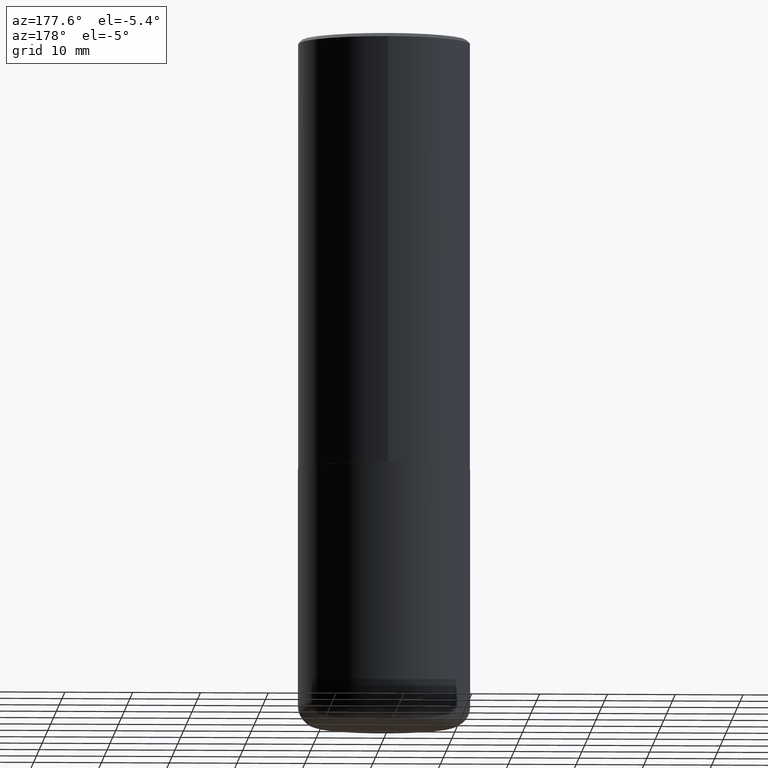
[diagram: clean part render]
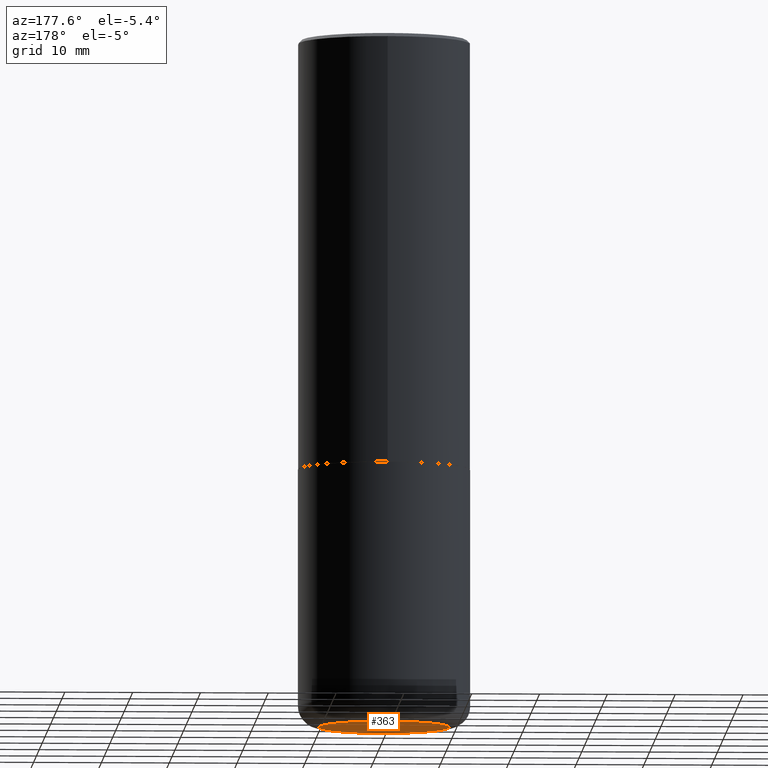
[diagram: same view with one face highlighted and labeled with its STEP entity id]
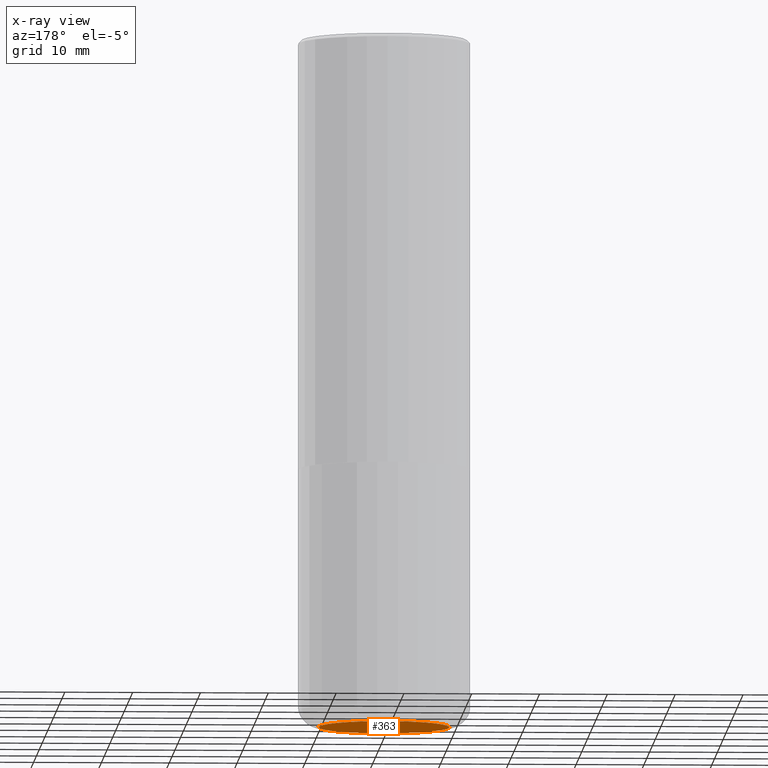
[diagram: x-ray of the same camera — body ghosted, the highlighted face saturated]
A machine part, auxiliary view. The second image highlights one B-rep face of the part: STEP entity #363.
The next image is the same camera in x-ray: the body ghosted, the highlighted face saturated — about 0% of this face is hidden behind the body in this view.
In plain terms, the highlighted planar face has unit normal (0, -0, -1).
Its self-contained STEP definition (entity closure, byte-faithful):
#15 = CARTESIAN_POINT ( 'NONE',  ( -0.3799999999999999489, -1.063004843769755357E-14, -4.000000000000000888 ) ) ;
#34 = EDGE_CURVE ( 'NONE', #104, #303, #343, .T. ) ;
#52 = DIRECTION ( 'NONE',  ( -1.000000000000000000, 6.982962677686265922E-15, -4.876176775795935793E-29 ) ) ;
#57 = DIRECTION ( 'NONE',  ( 2.438088387897960049E-29, -3.491481338843145188E-15, -1.000000000000000000 ) ) ;
#68 = AXIS2_PLACEMENT_3D ( 'NONE', #212, #275, #366 ) ;
#72 = ORIENTED_EDGE ( 'NONE', *, *, #34, .F. ) ;
#81 = FACE_OUTER_BOUND ( 'NONE', #228, .T. ) ;
#98 = EDGE_CURVE ( 'NONE', #303, #104, #176, .T. ) ;
#103 = ORIENTED_EDGE ( 'NONE', *, *, #98, .F. ) ;
#104 = VERTEX_POINT ( 'NONE', #15 ) ;
#176 = CIRCLE ( 'NONE', #68, 0.3799999999999999489 ) ;
#206 = AXIS2_PLACEMENT_3D ( 'NONE', #304, #57, #52 ) ;
#208 = DIRECTION ( 'NONE',  ( 1.000000000000000000, -6.982962677686267499E-15, 0.000000000000000000 ) ) ;
#209 = CARTESIAN_POINT ( 'NONE',  ( 0.3799999999999999489, -1.661945117289336400E-14, -4.000000000000000888 ) ) ;
#212 = CARTESIAN_POINT ( 'NONE',  ( 9.781875224740547508E-29, -1.396592535537258391E-14, -4.000000000000000888 ) ) ;
#228 = EDGE_LOOP ( 'NONE', ( #103, #72 ) ) ;
#238 = AXIS2_PLACEMENT_3D ( 'NONE', #305, #272, #208 ) ;
#247 = PLANE ( 'NONE',  #206 ) ;
#272 = DIRECTION ( 'NONE',  ( -2.445468806185136597E-29, 3.491481338843145583E-15, 1.000000000000000000 ) ) ;
#275 = DIRECTION ( 'NONE',  ( -2.445468806185136597E-29, 3.491481338843145583E-15, 1.000000000000000000 ) ) ;
#303 = VERTEX_POINT ( 'NONE', #209 ) ;
#304 = CARTESIAN_POINT ( 'NONE',  ( 5.765792576136407414E-29, -1.971718428940261207E-14, -4.000000000000000000 ) ) ;
#305 = CARTESIAN_POINT ( 'NONE',  ( 9.781875224740547508E-29, -1.396592535537258391E-14, -4.000000000000000888 ) ) ;
#343 = CIRCLE ( 'NONE', #238, 0.3799999999999999489 ) ;
#363 = ADVANCED_FACE ( 'NONE', ( #81 ), #247, .T. ) ;
#366 = DIRECTION ( 'NONE',  ( 1.000000000000000000, -6.982962677686267499E-15, 0.000000000000000000 ) ) ;